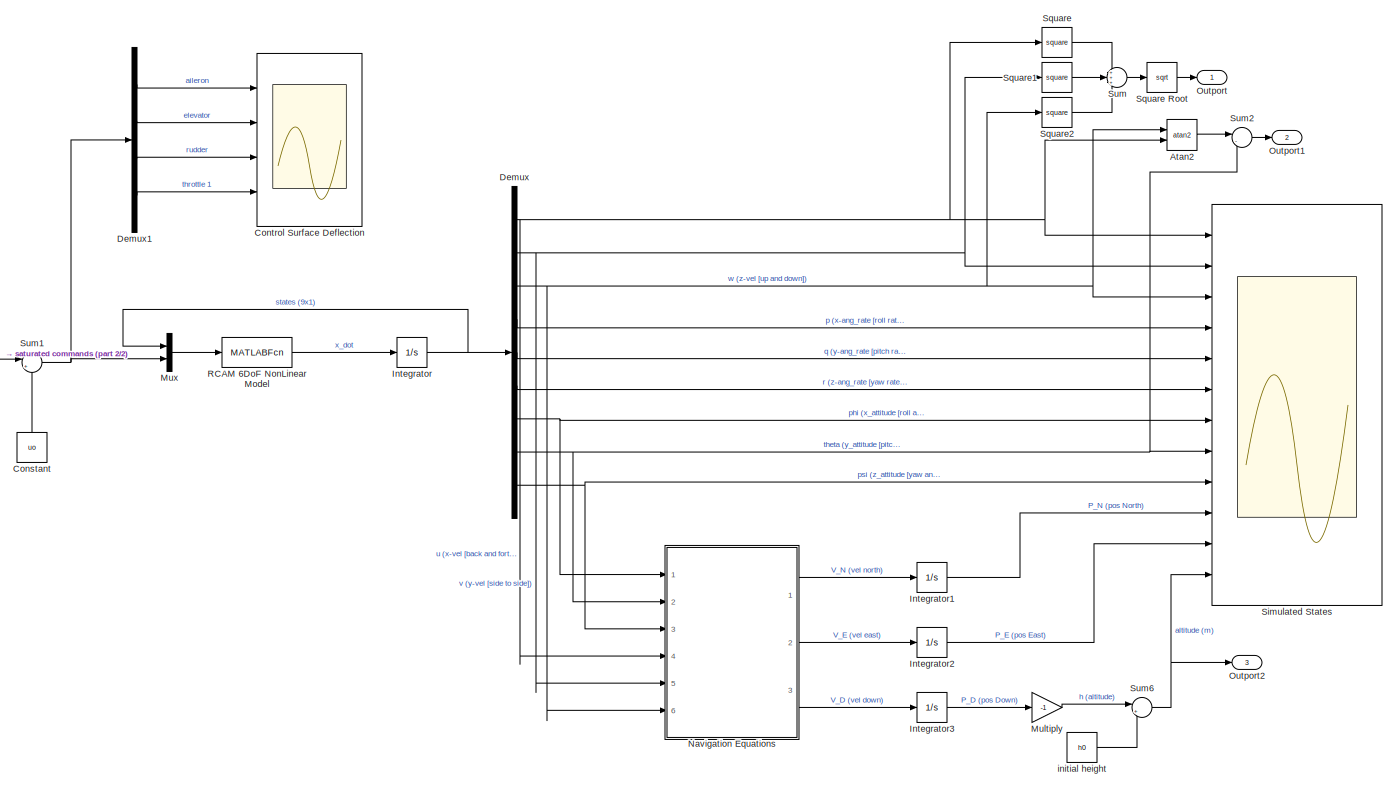
[diagram: root canvas - part 1/2, most of the canvas]
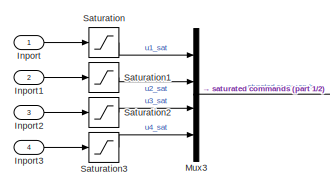
[diagram: root canvas - part 2/2, middle left region]
MODEL slx_2cac76dcdb07
KIND model
CONFIG AbsTol = auto
CONFIG EnableMultiTasking = off
CONFIG FixedStep = 0.0001
CONFIG MaxStep = auto
CONFIG MinStep = auto
CONFIG RelTol = 1e-3
CONFIG SampleTimeConstraint = Unconstrained
CONFIG SolverName = VariableStepAuto
CONFIG StartTime = 0.0
CONFIG StopTime = TF
BLOCK [Trigonometry] Atan2
  Operator = atan2
  Ports = [2, 1]
BLOCK [Constant] Constant
  NameLocation = right
  Value = uo
BLOCK [Scope] Control Surface Deflection
  Floating = off
  NumInputPorts = 4
  Ports = [4]
  ScopeSpecificationString = Simulink.scopes.TimeScopeBlockCfg('CurrentConfiguration', extmgr.ConfigurationSet(extmgr.Configuration('Core','General UI',true),extmgr.Configuration('Core','Source UI',true),extmgr.Configuration('Sources','WiredSimulink',true),extmgr.Configuration('Visuals','Time Domain',true,'SerializedDisplays',{struct('MinYLimReal','-0.00007','MaxYLimReal','0.00062','YLabelReal','','MinYLimMag','0.00000','MaxY...<+3857ch>
BLOCK [Demux] Demux
  Outputs = 9
  Ports = [1, 9]
BLOCK [Demux] Demux1
  Ports = [1, 4]
BLOCK [Inport] Inport
BLOCK [Inport] Inport1
  Port = 2
BLOCK [Inport] Inport2
  Port = 3
BLOCK [Inport] Inport3
  Port = 4
BLOCK [Integrator] Integrator
  InitialCondition = x0
  Ports = [1, 1]
BLOCK [Integrator] Integrator1
  Ports = [1, 1]
BLOCK [Integrator] Integrator2
  Ports = [1, 1]
BLOCK [Integrator] Integrator3
  Ports = [1, 1]
BLOCK [Gain] Multiply
  Gain = -1
BLOCK [Mux] Mux
  DisplayOption = bar
  Inputs = 2
  Ports = [2, 1]
BLOCK [Mux] Mux3
  DisplayOption = bar
  Ports = [4, 1]
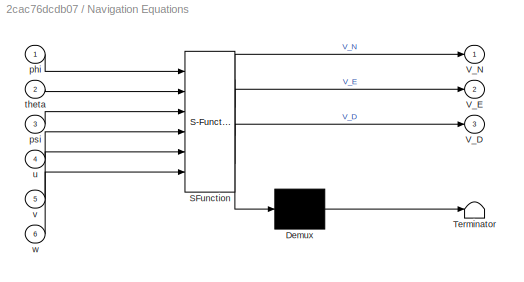
BLOCK [SubSystem] Navigation Equations
  ErrorFcn = Stateflow.Translate.translate
  PermitHierarchicalResolution = ExplicitOnly
  Ports = [6, 3]
  RequestExecContextInheritance = off
  SFBlockType = MATLAB Function
  TreatAsAtomicUnit = on
BLOCK [Demux] Navigation Equations/ Demux 
  Outputs = 1
  Ports = [1, 1]
BLOCK [S-Function] Navigation Equations/ SFunction 
  EnableBusSupport = on
  FunctionName = sf_sfun
  PortCounts = [6 4]
  Ports = [6, 4]
  SFcnIsStateOwnerBlock = off
  SFunctionDeploymentMode = off
  Tag = Stateflow S-Function 2
BLOCK [Terminator] Navigation Equations/ Terminator 
BLOCK [Outport] Navigation Equations/V_D
  Port = 3
BLOCK [Outport] Navigation Equations/V_E
  Port = 2
BLOCK [Outport] Navigation Equations/V_N
BLOCK [Inport] Navigation Equations/phi
BLOCK [Inport] Navigation Equations/psi
  Port = 3
BLOCK [Inport] Navigation Equations/theta
  Port = 2
BLOCK [Inport] Navigation Equations/u
  Port = 4
BLOCK [Inport] Navigation Equations/v
  Port = 5
BLOCK [Inport] Navigation Equations/w
  Port = 6
BLOCK [Outport] Outport
BLOCK [Outport] Outport1
  Port = 2
BLOCK [Outport] Outport2
  Port = 3
BLOCK [MATLABFcn] RCAM 6DoF NonLinear Model
  MATLABFcn = RCAM_model(u(1:9), u(10:13))
  Ports = [1, 1]
BLOCK [Saturate] Saturation
  LowerLimit = u1min
  UpperLimit = u1max
BLOCK [Saturate] Saturation1
  LowerLimit = u2min
  UpperLimit = u2max
BLOCK [Saturate] Saturation2
  LowerLimit = u3min
  UpperLimit = u3max
BLOCK [Saturate] Saturation3
  LowerLimit = u4min
  UpperLimit = u4max
BLOCK [Scope] Simulated States
  Floating = off
  NumInputPorts = 12
  Ports = [12]
  ScopeSpecificationString = Simulink.scopes.TimeScopeBlockCfg('CurrentConfiguration', extmgr.ConfigurationSet(extmgr.Configuration('Core','General UI',true),extmgr.Configuration('Core','Source UI',true),extmgr.Configuration('Sources','WiredSimulink',true,'DataLoggingVariableName','ScopeData1'),extmgr.Configuration('Visuals','Time Domain',true,'SerializedDisplays',{struct('MinYLimReal','19.99991','MaxYLimReal','20.00079','YLa...<+9275ch>
BLOCK [Math] Square
  Operator = square
  Ports = [1, 1]
BLOCK [Sqrt] Square Root
BLOCK [Math] Square1
  Operator = square
  Ports = [1, 1]
BLOCK [Math] Square2
  Operator = square
  Ports = [1, 1]
BLOCK [Sum] Sum
  Inputs = +++
  Ports = [3, 1]
BLOCK [Sum] Sum1
  Inputs = |++
  Ports = [2, 1]
BLOCK [Sum] Sum2
  Inputs = |-+
  Ports = [2, 1]
BLOCK [Sum] Sum6
  Inputs = |++
  Ports = [2, 1]
BLOCK [Constant] initial height
  Value = h0
LINE Atan2:1 -> Sum2:1
LINE Constant:1 -> Sum1:2
LINE Demux1:1 -> Control Surface Deflection:1
LINE Demux1:2 -> Control Surface Deflection:2
LINE Demux1:3 -> Control Surface Deflection:3
LINE Demux1:4 -> Control Surface Deflection:4
NET Demux:1 -> Atan2:2, Navigation Equations:4, Simulated States:1, Square:1
NET Demux:2 -> Navigation Equations:5, Simulated States:2, Square1:1
NET Demux:3 -> Atan2:1, Navigation Equations:6, Simulated States:3, Square2:1
LINE Demux:4 -> Simulated States:4
LINE Demux:5 -> Simulated States:5
LINE Demux:6 -> Simulated States:6
NET Demux:7 -> Navigation Equations:1, Simulated States:7
NET Demux:8 -> Navigation Equations:2, Simulated States:8, Sum2:2
NET Demux:9 -> Navigation Equations:3, Simulated States:9
LINE Inport1:1 -> Saturation1:1
LINE Inport2:1 -> Saturation2:1
LINE Inport3:1 -> Saturation3:1
LINE Inport:1 -> Saturation:1
LINE Integrator1:1 -> Simulated States:10
LINE Integrator2:1 -> Simulated States:11
LINE Integrator3:1 -> Multiply:1
NET Integrator:1 -> Demux:1, Mux:1
LINE Multiply:1 -> Sum6:1
LINE Mux3:1 -> Sum1:1
LINE Mux:1 -> RCAM 6DoF NonLinear Model:1
LINE Navigation Equations:1 -> Integrator1:1
LINE Navigation Equations:2 -> Integrator2:1
LINE Navigation Equations:3 -> Integrator3:1
LINE RCAM 6DoF NonLinear Model:1 -> Integrator:1
LINE Saturation1:1 -> Mux3:2
LINE Saturation2:1 -> Mux3:3
LINE Saturation3:1 -> Mux3:4
LINE Saturation:1 -> Mux3:1
LINE Square Root:1 -> Outport:1
LINE Square1:1 -> Sum:2
LINE Square2:1 -> Sum:3
LINE Square:1 -> Sum:1
NET Sum1:1 -> Demux1:1, Mux:2
LINE Sum2:1 -> Outport1:1
NET Sum6:1 -> Outport2:1, Simulated States:12
LINE Sum:1 -> Square Root:1
LINE initial height:1 -> Sum6:2
note: NET lines group one-source signal fan-out (src -> all destinations, sorted); 1:1 wires keep LINE
CHART Navigation Equations states=1 transitions=1
  STATE_LABEL 'eML_blk_kernel()'
  STATE_LABEL "SCRIPT:\nfunction [V_N, V_E, V_D] = navigation_equation(phi, theta, psi, u, v, w)\n\nx7 = phi;\nx8 = theta;\nx9 = psi;\nx1 = u;\nx2 = v;\nx3 = w;\n\nV_b = [x1; x2; x3];\n\n%navigation equations\nC1v = [cos(x9) sin(x9) 0; -sin(x9) cos(x9) 0; 0 0 1];\n\nC21 = [cos(x8) 0 -sin(x8); 0 1 0; sin(x8) 0 cos(x8)];\n\nCb2 = [1 0 0; 0 cos(x7) sin(x7); 0 -sin(x7) cos(x7)];\n\nCvb = Cb2*C21*C1v;\nCvb = Cvb';\n\nvel_vector = Cvb*V_b;...<+69ch>"
CHART  states=0 transitions=0
